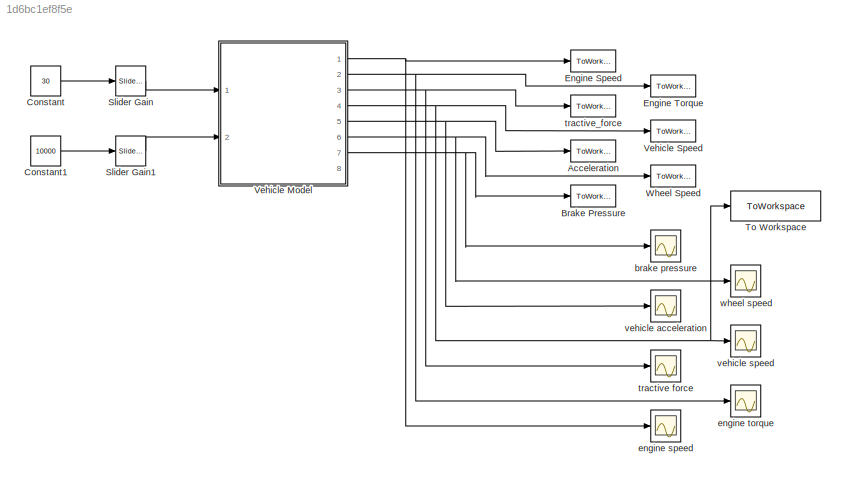
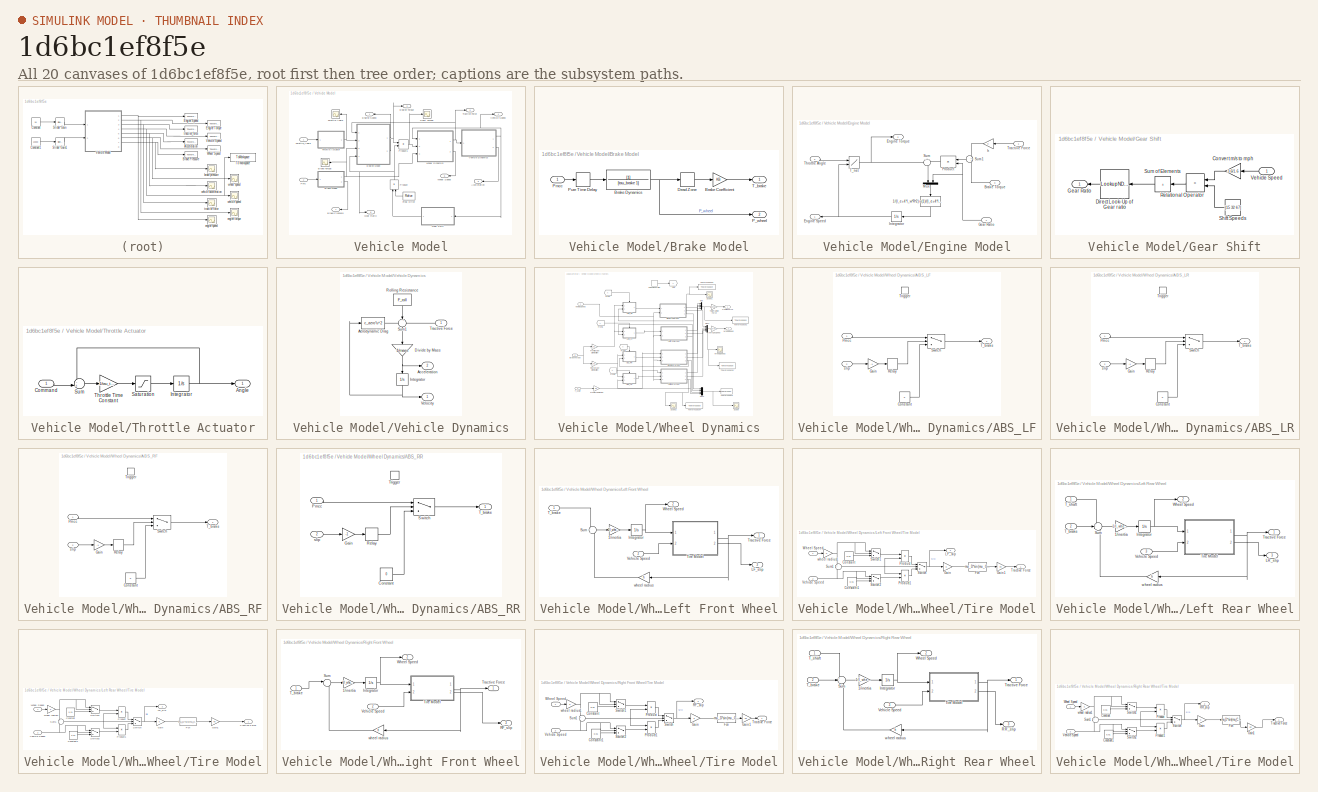
[diagram: thumbnail index - all 20 canvases of the model, root first then tree order]
MODEL slx_1d6bc1ef8f5e
KIND model
CONFIG AbsTol = auto
CONFIG EnableMultiTasking = on
CONFIG FixedStep = auto
CONFIG MaxStep = auto
CONFIG MinStep = auto
CONFIG RelTol = 1e-3
CONFIG SampleTimeConstraint = Unconstrained
CONFIG Solver = ode23s
CONFIG SolverName = ode23s
CONFIG StartTime = 0.0
CONFIG StopTime = 4
BLOCK [ToWorkspace] Acceleration
  MaxDataPoints = inf
  Ports = [1]
  SampleTime = -1
  VariableName = a
BLOCK [ToWorkspace] Brake Pressure
  MaxDataPoints = inf
  Ports = [1]
  SampleTime = -1
  VariableName = Pb
BLOCK [Constant] Constant
  Value = 30
BLOCK [Constant] Constant1
  Value = 10000
BLOCK [ToWorkspace] Engine Speed
  MaxDataPoints = inf
  Ports = [1]
  SampleTime = -1
  VariableName = We
BLOCK [ToWorkspace] Engine Torque
  MaxDataPoints = inf
  Ports = [1]
  SampleTime = -1
  VariableName = Te
BLOCK [Reference] Slider Gain  REF=simulink/Math
Operations/Slider
Gain
  Ports = [1, 1]
  SourceBlock = simulink/Math\nOperations/Slider\nGain
  SourceProductBaseCode = SL
  SourceType = Slider Gain
BLOCK [Reference] Slider Gain1  REF=simulink/Math
Operations/Slider
Gain
  Ports = [1, 1]
  SourceBlock = simulink/Math\nOperations/Slider\nGain
  SourceProductBaseCode = SL
  SourceType = Slider Gain
BLOCK [ToWorkspace] To Workspace
  FixptAsFi = on
  MaxDataPoints = inf
  Ports = [1]
  SampleTime = -1
  VariableName = speed
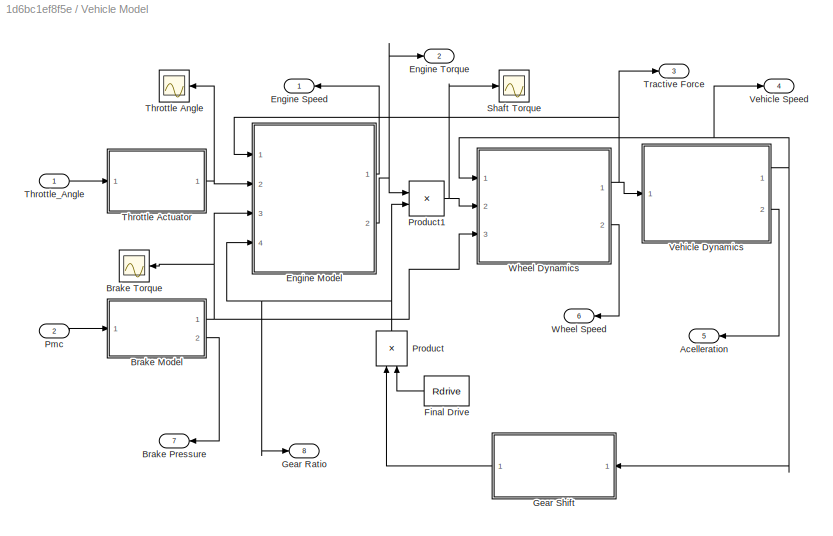
BLOCK [SubSystem] Vehicle Model
  Ports = [2, 8]
  RequestExecContextInheritance = off
BLOCK [Outport] Vehicle Model/Acelleration
  Port = 5
BLOCK [SubSystem] Vehicle Model/Brake Model
  Ports = [1, 2]
  RequestExecContextInheritance = off
BLOCK [Gain] Vehicle Model/Brake Model/Brake Coefficient
  Gain = KB
  OutDataTypeStr = Inherit: Same as input
  ParamDataTypeStr = Inherit: Same as input
  SaturateOnIntegerOverflow = on
BLOCK [TransferFcn] Vehicle Model/Brake Model/Brake Dynamics
  Denominator = [tau_brake 1]
BLOCK [DeadZone] Vehicle Model/Brake Model/Dead Zone
  LowerValue = -P_po
  UpperValue = P_po
BLOCK [Outport] Vehicle Model/Brake Model/P_wheel
  Port = 2
BLOCK [Inport] Vehicle Model/Brake Model/Pmcc
BLOCK [TransportDelay] Vehicle Model/Brake Model/Pure Time Delay
  DelayTime = delay_brake
  Ports = [1, 1]
BLOCK [Outport] Vehicle Model/Brake Model/T_brake
BLOCK [Outport] Vehicle Model/Brake Pressure
  Port = 7
BLOCK [Scope] Vehicle Model/Brake Torque
  Floating = off
  NameLocation = top
  NumInputPorts = 1
  Ports = [1]
  ScopeSpecificationString = C++SS(StrPVP('Location','[4, 496, 328, 735]'),StrPVP('Open','off'),MxPVP('AxesTitles',54,'struct(''axes1'',''%<SignalLabel>'')'),StrPVP('YMin','198.5'),StrPVP('YMax','200.75'),StrPVP('SaveName','ScopeData19'),StrPVP('DataFormat','StructureWithTime'),StrPVP('BlockParamSampleTime','0'),StrPVP('LimitDataPoints','on'),StrPVP('Decimation','1'),StrPVP('BlockParamSampleInput','off'))
BLOCK [SubSystem] Vehicle Model/Engine Model
  Ports = [4, 2]
  RequestExecContextInheritance = off
BLOCK [Fcn] Vehicle Model/Engine Model/1//(I_e+4*I_w*R^2)
  Expr = u(1)/(I_e+4*I_wheel*u(2)^2)
  NameLocation = left
BLOCK [Inport] Vehicle Model/Engine Model/Brake Torque
  Port = 3
BLOCK [Outport] Vehicle Model/Engine Model/Engine Speed
BLOCK [Outport] Vehicle Model/Engine Model/Engine Torque
  Port = 2
BLOCK [Inport] Vehicle Model/Engine Model/Gear Ratio
  Port = 4
BLOCK [Integrator] Vehicle Model/Engine Model/Integrator
  InitialCondition = we_o
  LimitOutput = on
  LowerSaturationLimit = [we_min]
  Ports = [1, 1]
  UpperSaturationLimit = [we_max]
BLOCK [Mux] Vehicle Model/Engine Model/Mux
  DisplayOption = bar
  Inputs = 2
  NameLocation = left
  Ports = [2, 1]
BLOCK [Product] Vehicle Model/Engine Model/Product
  InputSameDT = on
  OutDataTypeStr = Inherit: Same as first input
  Ports = [2, 1]
  RndMeth = Zero
  SaturateOnIntegerOverflow = on
BLOCK [Sum] Vehicle Model/Engine Model/Sum
  InputSameDT = on
  Inputs = +|-
  NameLocation = left
  OutDataTypeStr = Inherit: Same as first input
  Ports = [2, 1]
  SaturateOnIntegerOverflow = on
BLOCK [Sum] Vehicle Model/Engine Model/Sum1
  InputSameDT = on
  NameLocation = top
  OutDataTypeStr = Inherit: Same as first input
  Ports = [2, 1]
  SaturateOnIntegerOverflow = on
BLOCK [Lookup2D] Vehicle Model/Engine Model/T_net
  ColumnIndex = we_table
  RowIndex = alpha_table
  Table = tnet_table
BLOCK [Inport] Vehicle Model/Engine Model/Throttle Angle
  Port = 2
BLOCK [Inport] Vehicle Model/Engine Model/Tractive Force
BLOCK [Gain] Vehicle Model/Engine Model/h
  Gain = h
  Multiplication = Matrix(K*u)
  OutDataTypeStr = Inherit: Same as input
  ParamDataTypeStr = Inherit: Same as input
  SaturateOnIntegerOverflow = on
BLOCK [Outport] Vehicle Model/Engine Speed
BLOCK [Outport] Vehicle Model/Engine Torque
  Port = 2
BLOCK [Constant] Vehicle Model/Final Drive
  Value = Rdrive
BLOCK [Outport] Vehicle Model/Gear Ratio
  Port = 8
BLOCK [SubSystem] Vehicle Model/Gear Shift
  Ports = [1, 1]
  RequestExecContextInheritance = off
BLOCK [Gain] Vehicle Model/Gear Shift/Convert m//s to mph
  Gain = 3.6/1.6
  NameLocation = top
  OutDataTypeStr = Inherit: Same as input
  ParamDataTypeStr = Inherit: Same as input
  SaturateOnIntegerOverflow = on
BLOCK [LookupNDDirect] Vehicle Model/Gear Shift/Direct Look-Up of Gear ratio
  NameLocation = top
  NumberOfTableDimensions = 1
  Ports = [1, 1]
  Table = [0.3423,0.6378,1.0,1.4184]
BLOCK [Outport] Vehicle Model/Gear Shift/Gear Ratio
BLOCK [RelationalOperator] Vehicle Model/Gear Shift/Relational Operator
  NameLocation = top
  Operator = >
  Ports = [2, 1]
BLOCK [Constant] Vehicle Model/Gear Shift/Shift Speeds
  NameLocation = top
  Value = [15 32 67]
BLOCK [Sum] Vehicle Model/Gear Shift/Sum of Elements
  IconShape = rectangular
  Inputs = +
  Ports = [1, 1]
BLOCK [Inport] Vehicle Model/Gear Shift/Vehicle Speed
BLOCK [Inport] Vehicle Model/Pmc
  Port = 2
BLOCK [Product] Vehicle Model/Product
  InputSameDT = on
  Inputs = **
  NameLocation = left
  OutDataTypeStr = Inherit: Same as first input
  Ports = [2, 1]
  RndMeth = Zero
  SaturateOnIntegerOverflow = on
BLOCK [Product] Vehicle Model/Product1
  InputSameDT = on
  Inputs = */
  NameLocation = top
  OutDataTypeStr = Inherit: Same as first input
  Ports = [2, 1]
  RndMeth = Zero
  SaturateOnIntegerOverflow = on
BLOCK [Scope] Vehicle Model/Shaft Torque
  Floating = off
  NameLocation = top
  NumInputPorts = 1
  Ports = [1]
  ScopeSpecificationString = C++SS(StrPVP('Location','[679, 471, 1003, 710]'),StrPVP('Open','off'),StrPVP('ZoomMode','xonly'),MxPVP('AxesTitles',54,'struct(''axes1'',''%<SignalLabel>'')'),StrPVP('YMin','198.5'),StrPVP('YMax','200.75'),StrPVP('DataFormat','StructureWithTime'),StrPVP('BlockParamSampleTime','0'),StrPVP('LimitDataPoints','on'),StrPVP('Decimation','1'),StrPVP('BlockParamSampleInput','off'))
BLOCK [SubSystem] Vehicle Model/Throttle Actuator
  Ports = [1, 1]
  RequestExecContextInheritance = off
BLOCK [Outport] Vehicle Model/Throttle Actuator/Angle
BLOCK [Inport] Vehicle Model/Throttle Actuator/Command
BLOCK [Integrator] Vehicle Model/Throttle Actuator/Integrator
  InitialCondition = throttle_o
  LimitOutput = on
  LowerSaturationLimit = min_throttle
  Ports = [1, 1]
  UpperSaturationLimit = max_throttle
BLOCK [Saturate] Vehicle Model/Throttle Actuator/Saturation
  LowerLimit = -max_throttle_rate
  UpperLimit = max_throttle_rate
BLOCK [Sum] Vehicle Model/Throttle Actuator/Sum
  InputSameDT = on
  Inputs = -+|
  OutDataTypeStr = Inherit: Same as first input
  Ports = [2, 1]
  SaturateOnIntegerOverflow = on
BLOCK [Gain] Vehicle Model/Throttle Actuator/Throttle Time Constant
  Gain = 1/tau_throttle
  OutDataTypeStr = Inherit: Same as input
  ParamDataTypeStr = Inherit: Same as input
  SaturateOnIntegerOverflow = on
BLOCK [Scope] Vehicle Model/Throttle Angle
  Floating = off
  NameLocation = top
  NumInputPorts = 1
  Ports = [1]
  ScopeSpecificationString = C++SS(StrPVP('Location','[23, 496, 347, 735]'),StrPVP('Open','off'),StrPVP('ZoomMode','xonly'),MxPVP('AxesTitles',54,'struct(''axes1'',''%<SignalLabel>'')'),StrPVP('YMin','198.5'),StrPVP('YMax','200.75'),StrPVP('SaveName','ScopeData2'),StrPVP('DataFormat','StructureWithTime'),StrPVP('BlockParamSampleTime','0'),StrPVP('LimitDataPoints','on'),StrPVP('Decimation','1'),StrPVP('BlockParamSampleInput','...<+6ch>
BLOCK [Inport] Vehicle Model/Throttle_Angle
BLOCK [Outport] Vehicle Model/Tractive Force
  Port = 3
BLOCK [SubSystem] Vehicle Model/Vehicle Dynamics
  Ports = [1, 2]
  RequestExecContextInheritance = off
BLOCK [Outport] Vehicle Model/Vehicle Dynamics/Acceleration
  NameLocation = top
  Port = 2
BLOCK [Fcn] Vehicle Model/Vehicle Dynamics/Aerodynamic Drag
  Expr = c_aero*u^2
BLOCK [Gain] Vehicle Model/Vehicle Dynamics/Divide by Mass
  Gain = 1/mass
  Multiplication = Matrix(K*u)
  NameLocation = left
  OutDataTypeStr = Inherit: Same as input
  ParamDataTypeStr = Inherit: Same as input
  SaturateOnIntegerOverflow = on
BLOCK [Integrator] Vehicle Model/Vehicle Dynamics/Integrator
  InitialCondition = x_dot_o
  LimitOutput = on
  LowerSaturationLimit = 0
  NameLocation = left
  Ports = [1, 1]
BLOCK [Constant] Vehicle Model/Vehicle Dynamics/Rolling Resistance
  NameLocation = left
  Value = F_roll
BLOCK [Sum] Vehicle Model/Vehicle Dynamics/Sum1
  InputSameDT = on
  Inputs = --+
  NameLocation = left
  OutDataTypeStr = Inherit: Same as first input
  Ports = [3, 1]
  SaturateOnIntegerOverflow = on
BLOCK [Inport] Vehicle Model/Vehicle Dynamics/Tractive Force
BLOCK [Outport] Vehicle Model/Vehicle Dynamics/Velocity
  NameLocation = top
BLOCK [Outport] Vehicle Model/Vehicle Speed
  Port = 4
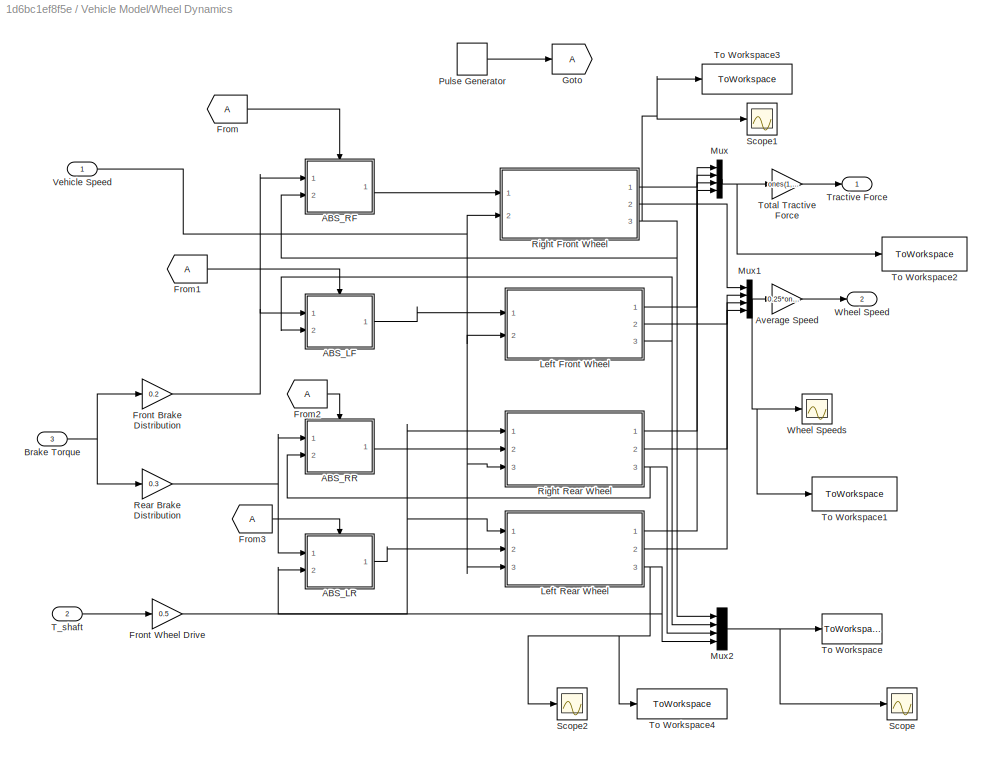
BLOCK [SubSystem] Vehicle Model/Wheel Dynamics
  Ports = [3, 2]
  RequestExecContextInheritance = off
BLOCK [SubSystem] Vehicle Model/Wheel Dynamics/ABS_LF
  Ports = [2, 1, 0, 1]
  RequestExecContextInheritance = off
  TreatAsAtomicUnit = on
BLOCK [Constant] Vehicle Model/Wheel Dynamics/ABS_LF/Constant
  Value = 0
BLOCK [Gain] Vehicle Model/Wheel Dynamics/ABS_LF/Gain
  Gain = -1
BLOCK [Inport] Vehicle Model/Wheel Dynamics/ABS_LF/Pmcc
BLOCK [Relay] Vehicle Model/Wheel Dynamics/ABS_LF/Relay
  OffOutputValue = 1
  OffSwitchValue = 0.1
  OnOutputValue = 0
  OnSwitchValue = 0.2
BLOCK [Switch] Vehicle Model/Wheel Dynamics/ABS_LF/Switch
  Criteria = u2 > Threshold
  InputSameDT = off
  SaturateOnIntegerOverflow = off
BLOCK [Outport] Vehicle Model/Wheel Dynamics/ABS_LF/T_brake
BLOCK [TriggerPort] Vehicle Model/Wheel Dynamics/ABS_LF/Trigger
  Ports = []
  StatesWhenEnabling = held
  VariantControl = Variant
BLOCK [Inport] Vehicle Model/Wheel Dynamics/ABS_LF/slip
  Port = 2
BLOCK [SubSystem] Vehicle Model/Wheel Dynamics/ABS_LR
  Ports = [2, 1, 0, 1]
  RequestExecContextInheritance = off
  TreatAsAtomicUnit = on
BLOCK [Constant] Vehicle Model/Wheel Dynamics/ABS_LR/Constant
  Value = 0
BLOCK [Gain] Vehicle Model/Wheel Dynamics/ABS_LR/Gain
  Gain = -1
BLOCK [Inport] Vehicle Model/Wheel Dynamics/ABS_LR/Pmcc
BLOCK [Relay] Vehicle Model/Wheel Dynamics/ABS_LR/Relay
  OffOutputValue = 1
  OffSwitchValue = 0.1
  OnOutputValue = 0
  OnSwitchValue = 0.2
BLOCK [Switch] Vehicle Model/Wheel Dynamics/ABS_LR/Switch
  Criteria = u2 > Threshold
  InputSameDT = off
  SaturateOnIntegerOverflow = off
BLOCK [Outport] Vehicle Model/Wheel Dynamics/ABS_LR/T_brake
BLOCK [TriggerPort] Vehicle Model/Wheel Dynamics/ABS_LR/Trigger
  Ports = []
  StatesWhenEnabling = held
  VariantControl = Variant
BLOCK [Inport] Vehicle Model/Wheel Dynamics/ABS_LR/slip
  Port = 2
BLOCK [SubSystem] Vehicle Model/Wheel Dynamics/ABS_RF
  Ports = [2, 1, 0, 1]
  RequestExecContextInheritance = off
  TreatAsAtomicUnit = on
BLOCK [Constant] Vehicle Model/Wheel Dynamics/ABS_RF/Constant
  Value = 0
BLOCK [Gain] Vehicle Model/Wheel Dynamics/ABS_RF/Gain
  Gain = -1
BLOCK [Inport] Vehicle Model/Wheel Dynamics/ABS_RF/Pmcc
BLOCK [Relay] Vehicle Model/Wheel Dynamics/ABS_RF/Relay
  OffOutputValue = 1
  OffSwitchValue = 0.1
  OnOutputValue = 0
  OnSwitchValue = 0.2
BLOCK [Switch] Vehicle Model/Wheel Dynamics/ABS_RF/Switch
  Criteria = u2 > Threshold
  InputSameDT = off
  SaturateOnIntegerOverflow = off
BLOCK [Outport] Vehicle Model/Wheel Dynamics/ABS_RF/T_brake
BLOCK [TriggerPort] Vehicle Model/Wheel Dynamics/ABS_RF/Trigger
  Ports = []
  StatesWhenEnabling = held
  VariantControl = Variant
BLOCK [Inport] Vehicle Model/Wheel Dynamics/ABS_RF/slip
  Port = 2
BLOCK [SubSystem] Vehicle Model/Wheel Dynamics/ABS_RR
  Ports = [2, 1, 0, 1]
  RequestExecContextInheritance = off
  TreatAsAtomicUnit = on
BLOCK [Constant] Vehicle Model/Wheel Dynamics/ABS_RR/Constant
  Value = 0
BLOCK [Gain] Vehicle Model/Wheel Dynamics/ABS_RR/Gain
  Gain = -1
BLOCK [Inport] Vehicle Model/Wheel Dynamics/ABS_RR/Pmcc
BLOCK [Relay] Vehicle Model/Wheel Dynamics/ABS_RR/Relay
  OffOutputValue = 1
  OffSwitchValue = 0.1
  OnOutputValue = 0
  OnSwitchValue = 0.2
BLOCK [Switch] Vehicle Model/Wheel Dynamics/ABS_RR/Switch
  Criteria = u2 > Threshold
  InputSameDT = off
  SaturateOnIntegerOverflow = off
BLOCK [Outport] Vehicle Model/Wheel Dynamics/ABS_RR/T_brake
BLOCK [TriggerPort] Vehicle Model/Wheel Dynamics/ABS_RR/Trigger
  Ports = []
  StatesWhenEnabling = held
  VariantControl = Variant
BLOCK [Inport] Vehicle Model/Wheel Dynamics/ABS_RR/slip
  Port = 2
BLOCK [Gain] Vehicle Model/Wheel Dynamics/Average Speed
  Gain = 0.25*ones(1,4)
  Multiplication = Matrix(K*u)
  OutDataTypeStr = Inherit: Same as input
  ParamDataTypeStr = Inherit: Same as input
  SaturateOnIntegerOverflow = on
BLOCK [Inport] Vehicle Model/Wheel Dynamics/Brake Torque
  Port = 3
BLOCK [From] Vehicle Model/Wheel Dynamics/From
BLOCK [From] Vehicle Model/Wheel Dynamics/From1
BLOCK [From] Vehicle Model/Wheel Dynamics/From2
BLOCK [From] Vehicle Model/Wheel Dynamics/From3
BLOCK [Gain] Vehicle Model/Wheel Dynamics/Front Brake Distribution
  Gain = 0.2
  OutDataTypeStr = Inherit: Same as input
  ParamDataTypeStr = Inherit: Same as input
  SaturateOnIntegerOverflow = on
BLOCK [Gain] Vehicle Model/Wheel Dynamics/Front Wheel Drive
  Gain = 0.5
  OutDataTypeStr = Inherit: Same as input
  ParamDataTypeStr = Inherit: Same as input
  SaturateOnIntegerOverflow = on
BLOCK [Goto] Vehicle Model/Wheel Dynamics/Goto
BLOCK [SubSystem] Vehicle Model/Wheel Dynamics/Left Front Wheel
  Ports = [2, 3]
  RequestExecContextInheritance = off
BLOCK [Gain] Vehicle Model/Wheel Dynamics/Left Front Wheel/1//inertia
  Gain = 1/I_wheel
  OutDataTypeStr = Inherit: Same as input
  ParamDataTypeStr = Inherit: Same as input
  SaturateOnIntegerOverflow = on
BLOCK [Integrator] Vehicle Model/Wheel Dynamics/Left Front Wheel/Integrator
  InitialCondition = w_wheel_o
  Ports = [1, 1]
BLOCK [Outport] Vehicle Model/Wheel Dynamics/Left Front Wheel/LF_slip
  Port = 3
BLOCK [Sum] Vehicle Model/Wheel Dynamics/Left Front Wheel/Sum
  InputSameDT = on
  Inputs = -|-
  OutDataTypeStr = Inherit: Same as first input
  Ports = [2, 1]
  SaturateOnIntegerOverflow = on
BLOCK [Inport] Vehicle Model/Wheel Dynamics/Left Front Wheel/T_brake
BLOCK [SubSystem] Vehicle Model/Wheel Dynamics/Left Front Wheel/Tire Model
  Ports = [2, 2]
  RequestExecContextInheritance = off
BLOCK [Constant] Vehicle Model/Wheel Dynamics/Left Front Wheel/Tire Model/Constant
  Value = 0.01
BLOCK [Constant] Vehicle Model/Wheel Dynamics/Left Front Wheel/Tire Model/Constant1
  Value = 0.01
BLOCK [Fcn] Vehicle Model/Wheel Dynamics/Left Front Wheel/Tire Model/Fcn
  Expr = mu_D*sin(mu_C*atan(mu_B*u-mu_E*(mu_B*u-atan(mu_B*u))))
BLOCK [Gain] Vehicle Model/Wheel Dynamics/Left Front Wheel/Tire Model/Gain
  OutDataTypeStr = Inherit: Same as input
  ParamDataTypeStr = Inherit: Same as input
  SaturateOnIntegerOverflow = on
BLOCK [Gain] Vehicle Model/Wheel Dynamics/Left Front Wheel/Tire Model/Gain1
  Gain = Fz
BLOCK [Outport] Vehicle Model/Wheel Dynamics/Left Front Wheel/Tire Model/LF_slip
  Port = 2
BLOCK [Product] Vehicle Model/Wheel Dynamics/Left Front Wheel/Tire Model/Product
  InputSameDT = on
  Inputs = /*
  OutDataTypeStr = Inherit: Same as first input
  Ports = [2, 1]
  RndMeth = Zero
  SaturateOnIntegerOverflow = on
BLOCK [Product] Vehicle Model/Wheel Dynamics/Left Front Wheel/Tire Model/Product1
  InputSameDT = on
  Inputs = */
  OutDataTypeStr = Inherit: Same as first input
  Ports = [2, 1]
  RndMeth = Zero
  SaturateOnIntegerOverflow = on
BLOCK [Sum] Vehicle Model/Wheel Dynamics/Left Front Wheel/Tire Model/Sum1
  InputSameDT = on
  Inputs = +-
  NameLocation = top
  OutDataTypeStr = Inherit: Same as first input
  Ports = [2, 1]
  SaturateOnIntegerOverflow = on
BLOCK [Switch] Vehicle Model/Wheel Dynamics/Left Front Wheel/Tire Model/Switch
BLOCK [Switch] Vehicle Model/Wheel Dynamics/Left Front Wheel/Tire Model/Switch1
  Threshold = 0.01
BLOCK [Switch] Vehicle Model/Wheel Dynamics/Left Front Wheel/Tire Model/Switch2
  Threshold = 0.01
BLOCK [Outport] Vehicle Model/Wheel Dynamics/Left Front Wheel/Tire Model/Tractive Force
BLOCK [Inport] Vehicle Model/Wheel Dynamics/Left Front Wheel/Tire Model/Vehicle Speed
  Port = 2
BLOCK [Inport] Vehicle Model/Wheel Dynamics/Left Front Wheel/Tire Model/Wheel Speed
BLOCK [Gain] Vehicle Model/Wheel Dynamics/Left Front Wheel/Tire Model/wheel radius1
  Gain = h
  OutDataTypeStr = Inherit: Same as input
  ParamDataTypeStr = Inherit: Same as input
  SaturateOnIntegerOverflow = on
BLOCK [Outport] Vehicle Model/Wheel Dynamics/Left Front Wheel/Tractive Force
BLOCK [Inport] Vehicle Model/Wheel Dynamics/Left Front Wheel/Vehicle Speed
  Port = 2
BLOCK [Outport] Vehicle Model/Wheel Dynamics/Left Front Wheel/Wheel Speed
  Port = 2
BLOCK [Gain] Vehicle Model/Wheel Dynamics/Left Front Wheel/wheel radius
  Gain = h
  NameLocation = top
  OutDataTypeStr = Inherit: Same as input
  ParamDataTypeStr = Inherit: Same as input
  SaturateOnIntegerOverflow = on
BLOCK [SubSystem] Vehicle Model/Wheel Dynamics/Left Rear Wheel
  Ports = [3, 3]
  RequestExecContextInheritance = off
BLOCK [Gain] Vehicle Model/Wheel Dynamics/Left Rear Wheel/1//inertia
  Gain = 1/I_wheel
  OutDataTypeStr = Inherit: Same as input
  ParamDataTypeStr = Inherit: Same as input
  SaturateOnIntegerOverflow = on
BLOCK [Integrator] Vehicle Model/Wheel Dynamics/Left Rear Wheel/Integrator
  InitialCondition = w_wheel_o
  Ports = [1, 1]
BLOCK [Outport] Vehicle Model/Wheel Dynamics/Left Rear Wheel/LR_slip
  Port = 3
BLOCK [Sum] Vehicle Model/Wheel Dynamics/Left Rear Wheel/Sum
  InputSameDT = on
  Inputs = +--
  OutDataTypeStr = Inherit: Same as first input
  Ports = [3, 1]
  SaturateOnIntegerOverflow = on
BLOCK [Inport] Vehicle Model/Wheel Dynamics/Left Rear Wheel/T_brake
  Port = 2
BLOCK [Inport] Vehicle Model/Wheel Dynamics/Left Rear Wheel/T_shaft
BLOCK [SubSystem] Vehicle Model/Wheel Dynamics/Left Rear Wheel/Tire Model
  Ports = [2, 2]
  RequestExecContextInheritance = off
BLOCK [Constant] Vehicle Model/Wheel Dynamics/Left Rear Wheel/Tire Model/Constant
  Value = 0.01
BLOCK [Constant] Vehicle Model/Wheel Dynamics/Left Rear Wheel/Tire Model/Constant1
  Value = 0.01
BLOCK [Fcn] Vehicle Model/Wheel Dynamics/Left Rear Wheel/Tire Model/Fcn
  Expr = mu_D*sin(mu_C*atan(mu_B*u-mu_E*(mu_B*u-atan(mu_B*u))))
BLOCK [Gain] Vehicle Model/Wheel Dynamics/Left Rear Wheel/Tire Model/Gain
  OutDataTypeStr = Inherit: Same as input
  ParamDataTypeStr = Inherit: Same as input
  SaturateOnIntegerOverflow = on
BLOCK [Gain] Vehicle Model/Wheel Dynamics/Left Rear Wheel/Tire Model/Gain1
  Gain = Fz
BLOCK [Outport] Vehicle Model/Wheel Dynamics/Left Rear Wheel/Tire Model/LR_slip
  Port = 2
BLOCK [Product] Vehicle Model/Wheel Dynamics/Left Rear Wheel/Tire Model/Product
  InputSameDT = on
  Inputs = /*
  OutDataTypeStr = Inherit: Same as first input
  Ports = [2, 1]
  RndMeth = Zero
  SaturateOnIntegerOverflow = on
BLOCK [Product] Vehicle Model/Wheel Dynamics/Left Rear Wheel/Tire Model/Product1
  InputSameDT = on
  Inputs = */
  OutDataTypeStr = Inherit: Same as first input
  Ports = [2, 1]
  RndMeth = Zero
  SaturateOnIntegerOverflow = on
BLOCK [Sum] Vehicle Model/Wheel Dynamics/Left Rear Wheel/Tire Model/Sum1
  InputSameDT = on
  Inputs = +-
  NameLocation = top
  OutDataTypeStr = Inherit: Same as first input
  Ports = [2, 1]
  SaturateOnIntegerOverflow = on
BLOCK [Switch] Vehicle Model/Wheel Dynamics/Left Rear Wheel/Tire Model/Switch
BLOCK [Switch] Vehicle Model/Wheel Dynamics/Left Rear Wheel/Tire Model/Switch1
  Threshold = 0.01
BLOCK [Switch] Vehicle Model/Wheel Dynamics/Left Rear Wheel/Tire Model/Switch2
  Threshold = 0.01
BLOCK [Outport] Vehicle Model/Wheel Dynamics/Left Rear Wheel/Tire Model/Tractive Force
BLOCK [Inport] Vehicle Model/Wheel Dynamics/Left Rear Wheel/Tire Model/Vehicle Speed
  Port = 2
BLOCK [Inport] Vehicle Model/Wheel Dynamics/Left Rear Wheel/Tire Model/Wheel Speed
BLOCK [Gain] Vehicle Model/Wheel Dynamics/Left Rear Wheel/Tire Model/wheel radius1
  Gain = h
  OutDataTypeStr = Inherit: Same as input
  ParamDataTypeStr = Inherit: Same as input
  SaturateOnIntegerOverflow = on
BLOCK [Outport] Vehicle Model/Wheel Dynamics/Left Rear Wheel/Tractive Force
BLOCK [Inport] Vehicle Model/Wheel Dynamics/Left Rear Wheel/Vehicle Speed
  Port = 3
BLOCK [Outport] Vehicle Model/Wheel Dynamics/Left Rear Wheel/Wheel Speed
  Port = 2
BLOCK [Gain] Vehicle Model/Wheel Dynamics/Left Rear Wheel/wheel radius
  Gain = h
  NameLocation = top
  OutDataTypeStr = Inherit: Same as input
  ParamDataTypeStr = Inherit: Same as input
  SaturateOnIntegerOverflow = on
BLOCK [Mux] Vehicle Model/Wheel Dynamics/Mux
  DisplayOption = bar
  Ports = [4, 1]
BLOCK [Mux] Vehicle Model/Wheel Dynamics/Mux1
  DisplayOption = bar
  Ports = [4, 1]
BLOCK [Mux] Vehicle Model/Wheel Dynamics/Mux2
  DisplayOption = bar
  NameLocation = top
  Ports = [4, 1]
BLOCK [DiscretePulseGenerator] Vehicle Model/Wheel Dynamics/Pulse Generator
  Period = 0.01
  Ports = [0, 1]
  PulseType = Time based
  PulseWidth = 50
BLOCK [Gain] Vehicle Model/Wheel Dynamics/Rear Brake Distribution
  Gain = 0.3
  OutDataTypeStr = Inherit: Same as input
  ParamDataTypeStr = Inherit: Same as input
  SaturateOnIntegerOverflow = on
BLOCK [SubSystem] Vehicle Model/Wheel Dynamics/Right Front Wheel
  Ports = [2, 3]
  RequestExecContextInheritance = off
BLOCK [Gain] Vehicle Model/Wheel Dynamics/Right Front Wheel/1//inertia
  Gain = 1/I_wheel
  OutDataTypeStr = Inherit: Same as input
  ParamDataTypeStr = Inherit: Same as input
  SaturateOnIntegerOverflow = on
BLOCK [Integrator] Vehicle Model/Wheel Dynamics/Right Front Wheel/Integrator
  InitialCondition = w_wheel_o
  Ports = [1, 1]
BLOCK [Outport] Vehicle Model/Wheel Dynamics/Right Front Wheel/RF_slip
  Port = 3
BLOCK [Sum] Vehicle Model/Wheel Dynamics/Right Front Wheel/Sum
  InputSameDT = on
  Inputs = |--
  OutDataTypeStr = Inherit: Same as first input
  Ports = [2, 1]
  SaturateOnIntegerOverflow = on
BLOCK [Inport] Vehicle Model/Wheel Dynamics/Right Front Wheel/T_brake
BLOCK [SubSystem] Vehicle Model/Wheel Dynamics/Right Front Wheel/Tire Model
  Ports = [2, 2]
  RequestExecContextInheritance = off
BLOCK [Constant] Vehicle Model/Wheel Dynamics/Right Front Wheel/Tire Model/Constant
  Value = 0.01
BLOCK [Constant] Vehicle Model/Wheel Dynamics/Right Front Wheel/Tire Model/Constant1
  Value = 0.01
BLOCK [Fcn] Vehicle Model/Wheel Dynamics/Right Front Wheel/Tire Model/Fcn
  Expr = mu_D*sin(mu_C*atan(mu_B*u-mu_E*(mu_B*u-atan(mu_B*u))))
BLOCK [Gain] Vehicle Model/Wheel Dynamics/Right Front Wheel/Tire Model/Gain
  OutDataTypeStr = Inherit: Same as input
  ParamDataTypeStr = Inherit: Same as input
  SaturateOnIntegerOverflow = on
BLOCK [Gain] Vehicle Model/Wheel Dynamics/Right Front Wheel/Tire Model/Gain1
  Gain = Fz
BLOCK [Product] Vehicle Model/Wheel Dynamics/Right Front Wheel/Tire Model/Product
  InputSameDT = on
  Inputs = /*
  OutDataTypeStr = Inherit: Same as first input
  Ports = [2, 1]
  RndMeth = Zero
  SaturateOnIntegerOverflow = on
BLOCK [Product] Vehicle Model/Wheel Dynamics/Right Front Wheel/Tire Model/Product1
  InputSameDT = on
  Inputs = */
  OutDataTypeStr = Inherit: Same as first input
  Ports = [2, 1]
  RndMeth = Zero
  SaturateOnIntegerOverflow = on
BLOCK [Outport] Vehicle Model/Wheel Dynamics/Right Front Wheel/Tire Model/RF_slip
  Port = 2
BLOCK [Sum] Vehicle Model/Wheel Dynamics/Right Front Wheel/Tire Model/Sum1
  InputSameDT = on
  Inputs = +-
  NameLocation = top
  OutDataTypeStr = Inherit: Same as first input
  Ports = [2, 1]
  SaturateOnIntegerOverflow = on
BLOCK [Switch] Vehicle Model/Wheel Dynamics/Right Front Wheel/Tire Model/Switch
BLOCK [Switch] Vehicle Model/Wheel Dynamics/Right Front Wheel/Tire Model/Switch1
  Threshold = 0.01
BLOCK [Switch] Vehicle Model/Wheel Dynamics/Right Front Wheel/Tire Model/Switch2
  Threshold = 0.01
BLOCK [Outport] Vehicle Model/Wheel Dynamics/Right Front Wheel/Tire Model/Tractive Force
BLOCK [Inport] Vehicle Model/Wheel Dynamics/Right Front Wheel/Tire Model/Vehicle Speed
  Port = 2
BLOCK [Inport] Vehicle Model/Wheel Dynamics/Right Front Wheel/Tire Model/Wheel Speed
BLOCK [Gain] Vehicle Model/Wheel Dynamics/Right Front Wheel/Tire Model/wheel radius1
  Gain = h
  OutDataTypeStr = Inherit: Same as input
  ParamDataTypeStr = Inherit: Same as input
  SaturateOnIntegerOverflow = on
BLOCK [Outport] Vehicle Model/Wheel Dynamics/Right Front Wheel/Tractive Force
BLOCK [Inport] Vehicle Model/Wheel Dynamics/Right Front Wheel/Vehicle Speed
  Port = 2
BLOCK [Outport] Vehicle Model/Wheel Dynamics/Right Front Wheel/Wheel Speed
  Port = 2
BLOCK [Gain] Vehicle Model/Wheel Dynamics/Right Front Wheel/wheel radius
  Gain = h
  NameLocation = top
  OutDataTypeStr = Inherit: Same as input
  ParamDataTypeStr = Inherit: Same as input
  SaturateOnIntegerOverflow = on
BLOCK [SubSystem] Vehicle Model/Wheel Dynamics/Right Rear Wheel
  Ports = [3, 3]
  RequestExecContextInheritance = off
BLOCK [Gain] Vehicle Model/Wheel Dynamics/Right Rear Wheel/1//inertia
  Gain = 1/I_wheel
  OutDataTypeStr = Inherit: Same as input
  ParamDataTypeStr = Inherit: Same as input
  SaturateOnIntegerOverflow = on
BLOCK [Integrator] Vehicle Model/Wheel Dynamics/Right Rear Wheel/Integrator
  InitialCondition = w_wheel_o
  Ports = [1, 1]
BLOCK [Outport] Vehicle Model/Wheel Dynamics/Right Rear Wheel/RR_slip
  Port = 3
BLOCK [Sum] Vehicle Model/Wheel Dynamics/Right Rear Wheel/Sum
  InputSameDT = on
  Inputs = +--
  OutDataTypeStr = Inherit: Same as first input
  Ports = [3, 1]
  SaturateOnIntegerOverflow = on
BLOCK [Inport] Vehicle Model/Wheel Dynamics/Right Rear Wheel/T_brake
  Port = 2
BLOCK [Inport] Vehicle Model/Wheel Dynamics/Right Rear Wheel/T_shaft
BLOCK [SubSystem] Vehicle Model/Wheel Dynamics/Right Rear Wheel/Tire Model
  Ports = [2, 2]
  RequestExecContextInheritance = off
BLOCK [Constant] Vehicle Model/Wheel Dynamics/Right Rear Wheel/Tire Model/Constant
  Value = 0.01
BLOCK [Constant] Vehicle Model/Wheel Dynamics/Right Rear Wheel/Tire Model/Constant1
  Value = 0.01
BLOCK [Fcn] Vehicle Model/Wheel Dynamics/Right Rear Wheel/Tire Model/Fcn
  Expr = mu_D*sin(mu_C*atan(mu_B*u-mu_E*(mu_B*u-atan(mu_B*u))))
BLOCK [Gain] Vehicle Model/Wheel Dynamics/Right Rear Wheel/Tire Model/Gain
  OutDataTypeStr = Inherit: Same as input
  ParamDataTypeStr = Inherit: Same as input
  SaturateOnIntegerOverflow = on
BLOCK [Gain] Vehicle Model/Wheel Dynamics/Right Rear Wheel/Tire Model/Gain1
  Gain = Fz
BLOCK [Product] Vehicle Model/Wheel Dynamics/Right Rear Wheel/Tire Model/Product
  InputSameDT = on
  Inputs = /*
  OutDataTypeStr = Inherit: Same as first input
  Ports = [2, 1]
  RndMeth = Zero
  SaturateOnIntegerOverflow = on
BLOCK [Product] Vehicle Model/Wheel Dynamics/Right Rear Wheel/Tire Model/Product1
  InputSameDT = on
  Inputs = */
  OutDataTypeStr = Inherit: Same as first input
  Ports = [2, 1]
  RndMeth = Zero
  SaturateOnIntegerOverflow = on
BLOCK [Outport] Vehicle Model/Wheel Dynamics/Right Rear Wheel/Tire Model/RR_slip
  Port = 2
BLOCK [Sum] Vehicle Model/Wheel Dynamics/Right Rear Wheel/Tire Model/Sum1
  InputSameDT = on
  Inputs = +-
  NameLocation = top
  OutDataTypeStr = Inherit: Same as first input
  Ports = [2, 1]
  SaturateOnIntegerOverflow = on
BLOCK [Switch] Vehicle Model/Wheel Dynamics/Right Rear Wheel/Tire Model/Switch
BLOCK [Switch] Vehicle Model/Wheel Dynamics/Right Rear Wheel/Tire Model/Switch1
  Threshold = 0.01
BLOCK [Switch] Vehicle Model/Wheel Dynamics/Right Rear Wheel/Tire Model/Switch2
  Threshold = 0.01
BLOCK [Outport] Vehicle Model/Wheel Dynamics/Right Rear Wheel/Tire Model/Tractive Force
BLOCK [Inport] Vehicle Model/Wheel Dynamics/Right Rear Wheel/Tire Model/Vehicle Speed
  Port = 2
BLOCK [Inport] Vehicle Model/Wheel Dynamics/Right Rear Wheel/Tire Model/Wheel Speed
BLOCK [Gain] Vehicle Model/Wheel Dynamics/Right Rear Wheel/Tire Model/wheel radius1
  Gain = h
  OutDataTypeStr = Inherit: Same as input
  ParamDataTypeStr = Inherit: Same as input
  SaturateOnIntegerOverflow = on
BLOCK [Outport] Vehicle Model/Wheel Dynamics/Right Rear Wheel/Tractive Force
BLOCK [Inport] Vehicle Model/Wheel Dynamics/Right Rear Wheel/Vehicle Speed
  Port = 3
BLOCK [Outport] Vehicle Model/Wheel Dynamics/Right Rear Wheel/Wheel Speed
  Port = 2
BLOCK [Gain] Vehicle Model/Wheel Dynamics/Right Rear Wheel/wheel radius
  Gain = h
  NameLocation = top
  OutDataTypeStr = Inherit: Same as input
  ParamDataTypeStr = Inherit: Same as input
  SaturateOnIntegerOverflow = on
BLOCK [Scope] Vehicle Model/Wheel Dynamics/Scope
  Floating = off
  NumInputPorts = 1
  Ports = [1]
  ScopeSpecificationString = Simulink.scopes.TimeScopeBlockCfg('CurrentConfiguration', extmgr.ConfigurationSet(extmgr.Configuration('Core','General UI',true),extmgr.Configuration('Core','Source UI',true),extmgr.Configuration('Sources','WiredSimulink',true,'DataLoggingVariableName','ScopeData1'),extmgr.Configuration('Visuals','Time Domain',true,'SerializedDisplays',{struct('MinYLimReal','-401.32062','MaxYLimReal','44.60177','Y...<+1497ch>
BLOCK [Scope] Vehicle Model/Wheel Dynamics/Scope1
  Floating = off
  NumInputPorts = 1
  Ports = [1]
  ScopeSpecificationString = Simulink.scopes.TimeScopeBlockCfg('CurrentConfiguration', extmgr.ConfigurationSet(extmgr.Configuration('Core','General UI',true),extmgr.Configuration('Core','Source UI',true),extmgr.Configuration('Sources','WiredSimulink',true,'DataLoggingVariableName','ScopeData2'),extmgr.Configuration('Visuals','Time Domain',true,'SerializedDisplays',{struct('MinYLimReal','-0.33808','MaxYLimReal','0.0382','YLabe...<+1410ch>
BLOCK [Scope] Vehicle Model/Wheel Dynamics/Scope2
  Floating = off
  NumInputPorts = 1
  Ports = [1]
  ScopeSpecificationString = Simulink.scopes.TimeScopeBlockCfg('CurrentConfiguration', extmgr.ConfigurationSet(extmgr.Configuration('Core','General UI',true),extmgr.Configuration('Core','Source UI',true),extmgr.Configuration('Sources','WiredSimulink',true,'DataLoggingVariableName','ScopeData3'),extmgr.Configuration('Visuals','Time Domain',true,'SerializedDisplays',{struct('MinYLimReal','-0.41137','MaxYLimReal','0.04571','YLab...<+1411ch>
BLOCK [Inport] Vehicle Model/Wheel Dynamics/T_shaft
  Port = 2
BLOCK [ToWorkspace] Vehicle Model/Wheel Dynamics/To Workspace
  MaxDataPoints = inf
  Ports = [1]
  SampleTime = -1
  VariableName = slip
BLOCK [ToWorkspace] Vehicle Model/Wheel Dynamics/To Workspace1
  MaxDataPoints = inf
  Ports = [1]
  SampleTime = -1
  VariableName = wheel_speed
BLOCK [ToWorkspace] Vehicle Model/Wheel Dynamics/To Workspace2
  MaxDataPoints = inf
  Ports = [1]
  SampleTime = -1
  VariableName = Tractive_Force
BLOCK [ToWorkspace] Vehicle Model/Wheel Dynamics/To Workspace3
  FixptAsFi = on
  MaxDataPoints = inf
  Ports = [1]
  SampleTime = -1
  VariableName = front
BLOCK [ToWorkspace] Vehicle Model/Wheel Dynamics/To Workspace4
  FixptAsFi = on
  MaxDataPoints = inf
  Ports = [1]
  SampleTime = -1
  SaveFormat = Structure With Time
  VariableName = rear
BLOCK [Gain] Vehicle Model/Wheel Dynamics/Total Tractive Force
  Gain = ones(1,4)
  Multiplication = Matrix(K*u)
  OutDataTypeStr = Inherit: Same as input
  ParamDataTypeStr = Inherit: Same as input
  SaturateOnIntegerOverflow = on
BLOCK [Outport] Vehicle Model/Wheel Dynamics/Tractive Force
BLOCK [Inport] Vehicle Model/Wheel Dynamics/Vehicle Speed
BLOCK [Outport] Vehicle Model/Wheel Dynamics/Wheel Speed
  Port = 2
BLOCK [Scope] Vehicle Model/Wheel Dynamics/Wheel Speeds
  Floating = off
  NameLocation = top
  NumInputPorts = 1
  Ports = [1]
  ScopeSpecificationString = C++SS(StrPVP('Location','[699, 533, 1023, 772]'),StrPVP('Open','off'),MxPVP('AxesTitles',54,'struct(''axes1'',''%<SignalLabel>'')'),StrPVP('YMax','30'),StrPVP('SaveName','ScopeData4'),StrPVP('DataFormat','StructureWithTime'),StrPVP('BlockParamSampleTime','0'),StrPVP('LimitDataPoints','on'),StrPVP('Decimation','1'),StrPVP('BlockParamSampleInput','off'))
BLOCK [Outport] Vehicle Model/Wheel Speed
  Port = 6
BLOCK [ToWorkspace] Vehicle Speed
  MaxDataPoints = inf
  Ports = [1]
  SampleTime = -1
  VariableName = v
BLOCK [ToWorkspace] Wheel Speed
  MaxDataPoints = inf
  Ports = [1]
  SampleTime = -1
  VariableName = w
BLOCK [Scope] brake pressure
  Floating = off
  NumInputPorts = 1
  Ports = [1]
  ScopeSpecificationString = C++SS(StrPVP('Location','[356, 496, 680, 735]'),StrPVP('Open','off'),MxPVP('AxesTitles',54,'struct(''axes1'',''%<SignalLabel>'')'),StrPVP('SaveName','ScopeData1'),StrPVP('DataFormat','StructureWithTime'),StrPVP('BlockParamSampleTime','0'),StrPVP('LimitDataPoints','on'),StrPVP('Decimation','1'),StrPVP('BlockParamSampleInput','off'))
BLOCK [Scope] engine speed
  Floating = off
  NumInputPorts = 1
  Ports = [1]
  ScopeSpecificationString = C++SS(StrPVP('Location','[521, 538, 845, 777]'),StrPVP('Open','off'),MxPVP('AxesTitles',54,'struct(''axes1'',''%<SignalLabel>'')'),StrPVP('SaveName','ScopeData5'),StrPVP('DataFormat','StructureWithTime'),StrPVP('BlockParamSampleTime','0'),StrPVP('LimitDataPoints','on'),StrPVP('Decimation','1'),StrPVP('BlockParamSampleInput','off'))
BLOCK [Scope] engine torque
  Floating = off
  NumInputPorts = 1
  Ports = [1]
  ScopeSpecificationString = C++SS(StrPVP('Location','[343, 495, 667, 734]'),StrPVP('Open','off'),MxPVP('AxesTitles',54,'struct(''axes1'',''%<SignalLabel>'')'),StrPVP('SaveName','ScopeData6'),StrPVP('DataFormat','StructureWithTime'),StrPVP('BlockParamSampleTime','0'),StrPVP('LimitDataPoints','on'),StrPVP('Decimation','1'),StrPVP('BlockParamSampleInput','off'))
BLOCK [Scope] tractive force
  Floating = off
  NumInputPorts = 1
  Ports = [1]
  ScopeSpecificationString = C++SS(StrPVP('Location','[75, 474, 399, 713]'),StrPVP('Open','off'),MxPVP('AxesTitles',54,'struct(''axes1'',''%<SignalLabel>'')'),StrPVP('SaveName','ScopeData9'),StrPVP('DataFormat','StructureWithTime'),StrPVP('BlockParamSampleTime','0'),StrPVP('LimitDataPoints','on'),StrPVP('Decimation','1'),StrPVP('BlockParamSampleInput','off'))
BLOCK [ToWorkspace] tractive_force
  MaxDataPoints = inf
  Ports = [1]
  SampleTime = -1
  VariableName = Ft
BLOCK [Scope] vehicle acceleration
  Floating = off
  NumInputPorts = 1
  Ports = [1]
  ScopeSpecificationString = C++SS(StrPVP('Location','[6, 497, 330, 736]'),StrPVP('Open','off'),MxPVP('AxesTitles',54,'struct(''axes1'',''%<SignalLabel>'')'),StrPVP('SaveName','ScopeData7'),StrPVP('DataFormat','StructureWithTime'),StrPVP('BlockParamSampleTime','0'),StrPVP('LimitDataPoints','on'),StrPVP('Decimation','1'),StrPVP('BlockParamSampleInput','off'))
BLOCK [Scope] vehicle speed
  Floating = off
  NumInputPorts = 1
  Ports = [1]
  ScopeSpecificationString = Simulink.scopes.TimeScopeBlockCfg('CurrentConfiguration', extmgr.ConfigurationSet(extmgr.Configuration('Core','General UI',true),extmgr.Configuration('Core','Source UI',true),extmgr.Configuration('Sources','WiredSimulink',true,'DataLoggingVariableName','ScopeData3','DataLoggingSaveFormat','StructureWithTime','DataLoggingLimitDataPoints',true,'DataLoggingDecimation','1','DataLoggingDecimateData',tr...<+1700ch>
BLOCK [Scope] wheel speed
  Floating = off
  NumInputPorts = 1
  Ports = [1]
  ScopeSpecificationString = Simulink.scopes.TimeScopeBlockCfg('CurrentConfiguration', extmgr.ConfigurationSet(extmgr.Configuration('Core','General UI',true),extmgr.Configuration('Core','Source UI',true),extmgr.Configuration('Sources','WiredSimulink',true,'DataLoggingVariableName','ScopeData8','DataLoggingSaveFormat','StructureWithTime','DataLoggingLimitDataPoints',true,'DataLoggingDecimation','1','DataLoggingDecimateData',tr...<+1707ch>
LINE Constant1:1 -> Slider Gain1:1
LINE Constant:1 -> Slider Gain:1
LINE Slider Gain1:1 -> Vehicle Model:2
LINE Slider Gain:1 -> Vehicle Model:1
LINE Vehicle Model/Brake Model/Brake Coefficient:1 -> Vehicle Model/Brake Model/T_brake:1
NET Vehicle Model/Brake Model/Brake Dynamics:1 -> Vehicle Model/Brake Model/Dead Zone:1, Vehicle Model/Brake Model/P_wheel:1
LINE Vehicle Model/Brake Model/Dead Zone:1 -> Vehicle Model/Brake Model/Brake Coefficient:1
LINE Vehicle Model/Brake Model/Pmcc:1 -> Vehicle Model/Brake Model/Pure Time Delay:1
LINE Vehicle Model/Brake Model/Pure Time Delay:1 -> Vehicle Model/Brake Model/Brake Dynamics:1
NET Vehicle Model/Brake Model:1 -> Vehicle Model/Brake Torque:1, Vehicle Model/Engine Model:3, Vehicle Model/Wheel Dynamics:3
LINE Vehicle Model/Brake Model:2 -> Vehicle Model/Brake Pressure:1
LINE Vehicle Model/Engine Model/1//(I_e+4*I_w*R^2):1 -> Vehicle Model/Engine Model/Integrator:1
LINE Vehicle Model/Engine Model/Brake Torque:1 -> Vehicle Model/Engine Model/Sum1:2
NET Vehicle Model/Engine Model/Gear Ratio:1 -> Vehicle Model/Engine Model/Mux:2, Vehicle Model/Engine Model/Product:2
NET Vehicle Model/Engine Model/Integrator:1 -> Vehicle Model/Engine Model/Engine Speed:1, Vehicle Model/Engine Model/T_net:2
LINE Vehicle Model/Engine Model/Mux:1 -> Vehicle Model/Engine Model/1//(I_e+4*I_w*R^2):1
LINE Vehicle Model/Engine Model/Product:1 -> Vehicle Model/Engine Model/Sum:2
LINE Vehicle Model/Engine Model/Sum1:1 -> Vehicle Model/Engine Model/Product:1
LINE Vehicle Model/Engine Model/Sum:1 -> Vehicle Model/Engine Model/Mux:1
NET Vehicle Model/Engine Model/T_net:1 -> Vehicle Model/Engine Model/Engine Torque:1, Vehicle Model/Engine Model/Sum:1
LINE Vehicle Model/Engine Model/Throttle Angle:1 -> Vehicle Model/Engine Model/T_net:1
LINE Vehicle Model/Engine Model/Tractive Force:1 -> Vehicle Model/Engine Model/h:1
LINE Vehicle Model/Engine Model/h:1 -> Vehicle Model/Engine Model/Sum1:1
LINE Vehicle Model/Engine Model:1 -> Vehicle Model/Engine Speed:1
NET Vehicle Model/Engine Model:2 -> Vehicle Model/Engine Torque:1, Vehicle Model/Product1:1
LINE Vehicle Model/Final Drive:1 -> Vehicle Model/Product:2
LINE Vehicle Model/Gear Shift/Convert m//s to mph:1 -> Vehicle Model/Gear Shift/Relational Operator:1
LINE Vehicle Model/Gear Shift/Direct Look-Up of Gear ratio:1 -> Vehicle Model/Gear Shift/Gear Ratio:1
LINE Vehicle Model/Gear Shift/Relational Operator:1 -> Vehicle Model/Gear Shift/Sum of Elements:1
LINE Vehicle Model/Gear Shift/Shift Speeds:1 -> Vehicle Model/Gear Shift/Relational Operator:2
LINE Vehicle Model/Gear Shift/Sum of Elements:1 -> Vehicle Model/Gear Shift/Direct Look-Up of Gear ratio:1
LINE Vehicle Model/Gear Shift/Vehicle Speed:1 -> Vehicle Model/Gear Shift/Convert m//s to mph:1
LINE Vehicle Model/Gear Shift:1 -> Vehicle Model/Product:1
LINE Vehicle Model/Pmc:1 -> Vehicle Model/Brake Model:1
NET Vehicle Model/Product1:1 -> Vehicle Model/Shaft Torque:1, Vehicle Model/Wheel Dynamics:2
NET Vehicle Model/Product:1 -> Vehicle Model/Engine Model:4, Vehicle Model/Gear Ratio:1, Vehicle Model/Product1:2
LINE Vehicle Model/Throttle Actuator/Command:1 -> Vehicle Model/Throttle Actuator/Sum:2
NET Vehicle Model/Throttle Actuator/Integrator:1 -> Vehicle Model/Throttle Actuator/Angle:1, Vehicle Model/Throttle Actuator/Sum:1
LINE Vehicle Model/Throttle Actuator/Saturation:1 -> Vehicle Model/Throttle Actuator/Integrator:1
LINE Vehicle Model/Throttle Actuator/Sum:1 -> Vehicle Model/Throttle Actuator/Throttle Time Constant:1
LINE Vehicle Model/Throttle Actuator/Throttle Time Constant:1 -> Vehicle Model/Throttle Actuator/Saturation:1
NET Vehicle Model/Throttle Actuator:1 -> Vehicle Model/Engine Model:2, Vehicle Model/Throttle Angle:1
LINE Vehicle Model/Throttle_Angle:1 -> Vehicle Model/Throttle Actuator:1
LINE Vehicle Model/Vehicle Dynamics/Aerodynamic Drag:1 -> Vehicle Model/Vehicle Dynamics/Sum1:1
NET Vehicle Model/Vehicle Dynamics/Divide by Mass:1 -> Vehicle Model/Vehicle Dynamics/Acceleration:1, Vehicle Model/Vehicle Dynamics/Integrator:1
NET Vehicle Model/Vehicle Dynamics/Integrator:1 -> Vehicle Model/Vehicle Dynamics/Aerodynamic Drag:1, Vehicle Model/Vehicle Dynamics/Velocity:1
LINE Vehicle Model/Vehicle Dynamics/Rolling Resistance:1 -> Vehicle Model/Vehicle Dynamics/Sum1:2
LINE Vehicle Model/Vehicle Dynamics/Sum1:1 -> Vehicle Model/Vehicle Dynamics/Divide by Mass:1
LINE Vehicle Model/Vehicle Dynamics/Tractive Force:1 -> Vehicle Model/Vehicle Dynamics/Sum1:3
NET Vehicle Model/Vehicle Dynamics:1 -> Vehicle Model/Gear Shift:1, Vehicle Model/Vehicle Speed:1, Vehicle Model/Wheel Dynamics:1
LINE Vehicle Model/Vehicle Dynamics:2 -> Vehicle Model/Acelleration:1
LINE Vehicle Model/Wheel Dynamics/ABS_LF/Constant:1 -> Vehicle Model/Wheel Dynamics/ABS_LF/Switch:3
LINE Vehicle Model/Wheel Dynamics/ABS_LF/Gain:1 -> Vehicle Model/Wheel Dynamics/ABS_LF/Relay:1
LINE Vehicle Model/Wheel Dynamics/ABS_LF/Pmcc:1 -> Vehicle Model/Wheel Dynamics/ABS_LF/Switch:1
LINE Vehicle Model/Wheel Dynamics/ABS_LF/Relay:1 -> Vehicle Model/Wheel Dynamics/ABS_LF/Switch:2
LINE Vehicle Model/Wheel Dynamics/ABS_LF/Switch:1 -> Vehicle Model/Wheel Dynamics/ABS_LF/T_brake:1
LINE Vehicle Model/Wheel Dynamics/ABS_LF/slip:1 -> Vehicle Model/Wheel Dynamics/ABS_LF/Gain:1
LINE Vehicle Model/Wheel Dynamics/ABS_LF:1 -> Vehicle Model/Wheel Dynamics/Left Front Wheel:1
LINE Vehicle Model/Wheel Dynamics/ABS_LR/Constant:1 -> Vehicle Model/Wheel Dynamics/ABS_LR/Switch:3
LINE Vehicle Model/Wheel Dynamics/ABS_LR/Gain:1 -> Vehicle Model/Wheel Dynamics/ABS_LR/Relay:1
LINE Vehicle Model/Wheel Dynamics/ABS_LR/Pmcc:1 -> Vehicle Model/Wheel Dynamics/ABS_LR/Switch:1
LINE Vehicle Model/Wheel Dynamics/ABS_LR/Relay:1 -> Vehicle Model/Wheel Dynamics/ABS_LR/Switch:2
LINE Vehicle Model/Wheel Dynamics/ABS_LR/Switch:1 -> Vehicle Model/Wheel Dynamics/ABS_LR/T_brake:1
LINE Vehicle Model/Wheel Dynamics/ABS_LR/slip:1 -> Vehicle Model/Wheel Dynamics/ABS_LR/Gain:1
LINE Vehicle Model/Wheel Dynamics/ABS_LR:1 -> Vehicle Model/Wheel Dynamics/Left Rear Wheel:2
LINE Vehicle Model/Wheel Dynamics/ABS_RF/Constant:1 -> Vehicle Model/Wheel Dynamics/ABS_RF/Switch:3
LINE Vehicle Model/Wheel Dynamics/ABS_RF/Gain:1 -> Vehicle Model/Wheel Dynamics/ABS_RF/Relay:1
LINE Vehicle Model/Wheel Dynamics/ABS_RF/Pmcc:1 -> Vehicle Model/Wheel Dynamics/ABS_RF/Switch:1
LINE Vehicle Model/Wheel Dynamics/ABS_RF/Relay:1 -> Vehicle Model/Wheel Dynamics/ABS_RF/Switch:2
LINE Vehicle Model/Wheel Dynamics/ABS_RF/Switch:1 -> Vehicle Model/Wheel Dynamics/ABS_RF/T_brake:1
LINE Vehicle Model/Wheel Dynamics/ABS_RF/slip:1 -> Vehicle Model/Wheel Dynamics/ABS_RF/Gain:1
LINE Vehicle Model/Wheel Dynamics/ABS_RF:1 -> Vehicle Model/Wheel Dynamics/Right Front Wheel:1
LINE Vehicle Model/Wheel Dynamics/ABS_RR/Constant:1 -> Vehicle Model/Wheel Dynamics/ABS_RR/Switch:3
LINE Vehicle Model/Wheel Dynamics/ABS_RR/Gain:1 -> Vehicle Model/Wheel Dynamics/ABS_RR/Relay:1
LINE Vehicle Model/Wheel Dynamics/ABS_RR/Pmcc:1 -> Vehicle Model/Wheel Dynamics/ABS_RR/Switch:1
LINE Vehicle Model/Wheel Dynamics/ABS_RR/Relay:1 -> Vehicle Model/Wheel Dynamics/ABS_RR/Switch:2
LINE Vehicle Model/Wheel Dynamics/ABS_RR/Switch:1 -> Vehicle Model/Wheel Dynamics/ABS_RR/T_brake:1
LINE Vehicle Model/Wheel Dynamics/ABS_RR/slip:1 -> Vehicle Model/Wheel Dynamics/ABS_RR/Gain:1
LINE Vehicle Model/Wheel Dynamics/ABS_RR:1 -> Vehicle Model/Wheel Dynamics/Right Rear Wheel:2
LINE Vehicle Model/Wheel Dynamics/Average Speed:1 -> Vehicle Model/Wheel Dynamics/Wheel Speed:1
NET Vehicle Model/Wheel Dynamics/Brake Torque:1 -> Vehicle Model/Wheel Dynamics/Front Brake Distribution:1, Vehicle Model/Wheel Dynamics/Rear Brake Distribution:1
LINE Vehicle Model/Wheel Dynamics/From1:1 -> Vehicle Model/Wheel Dynamics/ABS_LF:trigger
LINE Vehicle Model/Wheel Dynamics/From2:1 -> Vehicle Model/Wheel Dynamics/ABS_RR:trigger
LINE Vehicle Model/Wheel Dynamics/From3:1 -> Vehicle Model/Wheel Dynamics/ABS_LR:trigger
LINE Vehicle Model/Wheel Dynamics/From:1 -> Vehicle Model/Wheel Dynamics/ABS_RF:trigger
NET Vehicle Model/Wheel Dynamics/Front Brake Distribution:1 -> Vehicle Model/Wheel Dynamics/ABS_LF:1, Vehicle Model/Wheel Dynamics/ABS_RF:1
NET Vehicle Model/Wheel Dynamics/Front Wheel Drive:1 -> Vehicle Model/Wheel Dynamics/Left Rear Wheel:1, Vehicle Model/Wheel Dynamics/Right Rear Wheel:1
LINE Vehicle Model/Wheel Dynamics/Left Front Wheel/1//inertia:1 -> Vehicle Model/Wheel Dynamics/Left Front Wheel/Integrator:1
NET Vehicle Model/Wheel Dynamics/Left Front Wheel/Integrator:1 -> Vehicle Model/Wheel Dynamics/Left Front Wheel/Tire Model:1, Vehicle Model/Wheel Dynamics/Left Front Wheel/Wheel Speed:1
LINE Vehicle Model/Wheel Dynamics/Left Front Wheel/Sum:1 -> Vehicle Model/Wheel Dynamics/Left Front Wheel/1//inertia:1
LINE Vehicle Model/Wheel Dynamics/Left Front Wheel/T_brake:1 -> Vehicle Model/Wheel Dynamics/Left Front Wheel/Sum:1
LINE Vehicle Model/Wheel Dynamics/Left Front Wheel/Tire Model/Constant1:1 -> Vehicle Model/Wheel Dynamics/Left Front Wheel/Tire Model/Switch2:3
LINE Vehicle Model/Wheel Dynamics/Left Front Wheel/Tire Model/Constant:1 -> Vehicle Model/Wheel Dynamics/Left Front Wheel/Tire Model/Switch1:3
LINE Vehicle Model/Wheel Dynamics/Left Front Wheel/Tire Model/Fcn:1 -> Vehicle Model/Wheel Dynamics/Left Front Wheel/Tire Model/Gain1:1
LINE Vehicle Model/Wheel Dynamics/Left Front Wheel/Tire Model/Gain1:1 -> Vehicle Model/Wheel Dynamics/Left Front Wheel/Tire Model/Tractive Force:1
LINE Vehicle Model/Wheel Dynamics/Left Front Wheel/Tire Model/Gain:1 -> Vehicle Model/Wheel Dynamics/Left Front Wheel/Tire Model/Fcn:1
LINE Vehicle Model/Wheel Dynamics/Left Front Wheel/Tire Model/Product1:1 -> Vehicle Model/Wheel Dynamics/Left Front Wheel/Tire Model/Switch:3
LINE Vehicle Model/Wheel Dynamics/Left Front Wheel/Tire Model/Product:1 -> Vehicle Model/Wheel Dynamics/Left Front Wheel/Tire Model/Switch:1
NET Vehicle Model/Wheel Dynamics/Left Front Wheel/Tire Model/Sum1:1 -> Vehicle Model/Wheel Dynamics/Left Front Wheel/Tire Model/Product1:1, Vehicle Model/Wheel Dynamics/Left Front Wheel/Tire Model/Product:2, Vehicle Model/Wheel Dynamics/Left Front Wheel/Tire Model/Switch:2
LINE Vehicle Model/Wheel Dynamics/Left Front Wheel/Tire Model/Switch1:1 -> Vehicle Model/Wheel Dynamics/Left Front Wheel/Tire Model/Product:1
LINE Vehicle Model/Wheel Dynamics/Left Front Wheel/Tire Model/Switch2:1 -> Vehicle Model/Wheel Dynamics/Left Front Wheel/Tire Model/Product1:2
NET Vehicle Model/Wheel Dynamics/Left Front Wheel/Tire Model/Switch:1 -> Vehicle Model/Wheel Dynamics/Left Front Wheel/Tire Model/Gain:1, Vehicle Model/Wheel Dynamics/Left Front Wheel/Tire Model/LF_slip:1
NET Vehicle Model/Wheel Dynamics/Left Front Wheel/Tire Model/Vehicle Speed:1 -> Vehicle Model/Wheel Dynamics/Left Front Wheel/Tire Model/Sum1:2, Vehicle Model/Wheel Dynamics/Left Front Wheel/Tire Model/Switch2:1, Vehicle Model/Wheel Dynamics/Left Front Wheel/Tire Model/Switch2:2
LINE Vehicle Model/Wheel Dynamics/Left Front Wheel/Tire Model/Wheel Speed:1 -> Vehicle Model/Wheel Dynamics/Left Front Wheel/Tire Model/wheel radius1:1
NET Vehicle Model/Wheel Dynamics/Left Front Wheel/Tire Model/wheel radius1:1 -> Vehicle Model/Wheel Dynamics/Left Front Wheel/Tire Model/Sum1:1, Vehicle Model/Wheel Dynamics/Left Front Wheel/Tire Model/Switch1:1, Vehicle Model/Wheel Dynamics/Left Front Wheel/Tire Model/Switch1:2
NET Vehicle Model/Wheel Dynamics/Left Front Wheel/Tire Model:1 -> Vehicle Model/Wheel Dynamics/Left Front Wheel/Tractive Force:1, Vehicle Model/Wheel Dynamics/Left Front Wheel/wheel radius:1
LINE Vehicle Model/Wheel Dynamics/Left Front Wheel/Tire Model:2 -> Vehicle Model/Wheel Dynamics/Left Front Wheel/LF_slip:1
LINE Vehicle Model/Wheel Dynamics/Left Front Wheel/Vehicle Speed:1 -> Vehicle Model/Wheel Dynamics/Left Front Wheel/Tire Model:2
LINE Vehicle Model/Wheel Dynamics/Left Front Wheel/wheel radius:1 -> Vehicle Model/Wheel Dynamics/Left Front Wheel/Sum:2
LINE Vehicle Model/Wheel Dynamics/Left Front Wheel:1 -> Vehicle Model/Wheel Dynamics/Mux:2
LINE Vehicle Model/Wheel Dynamics/Left Front Wheel:2 -> Vehicle Model/Wheel Dynamics/Mux1:2
NET Vehicle Model/Wheel Dynamics/Left Front Wheel:3 -> Vehicle Model/Wheel Dynamics/ABS_LF:2, Vehicle Model/Wheel Dynamics/Mux2:2
LINE Vehicle Model/Wheel Dynamics/Left Rear Wheel/1//inertia:1 -> Vehicle Model/Wheel Dynamics/Left Rear Wheel/Integrator:1
NET Vehicle Model/Wheel Dynamics/Left Rear Wheel/Integrator:1 -> Vehicle Model/Wheel Dynamics/Left Rear Wheel/Tire Model:1, Vehicle Model/Wheel Dynamics/Left Rear Wheel/Wheel Speed:1
LINE Vehicle Model/Wheel Dynamics/Left Rear Wheel/Sum:1 -> Vehicle Model/Wheel Dynamics/Left Rear Wheel/1//inertia:1
LINE Vehicle Model/Wheel Dynamics/Left Rear Wheel/T_brake:1 -> Vehicle Model/Wheel Dynamics/Left Rear Wheel/Sum:2
LINE Vehicle Model/Wheel Dynamics/Left Rear Wheel/T_shaft:1 -> Vehicle Model/Wheel Dynamics/Left Rear Wheel/Sum:1
LINE Vehicle Model/Wheel Dynamics/Left Rear Wheel/Tire Model/Constant1:1 -> Vehicle Model/Wheel Dynamics/Left Rear Wheel/Tire Model/Switch2:3
LINE Vehicle Model/Wheel Dynamics/Left Rear Wheel/Tire Model/Constant:1 -> Vehicle Model/Wheel Dynamics/Left Rear Wheel/Tire Model/Switch1:3
LINE Vehicle Model/Wheel Dynamics/Left Rear Wheel/Tire Model/Fcn:1 -> Vehicle Model/Wheel Dynamics/Left Rear Wheel/Tire Model/Gain1:1
LINE Vehicle Model/Wheel Dynamics/Left Rear Wheel/Tire Model/Gain1:1 -> Vehicle Model/Wheel Dynamics/Left Rear Wheel/Tire Model/Tractive Force:1
LINE Vehicle Model/Wheel Dynamics/Left Rear Wheel/Tire Model/Gain:1 -> Vehicle Model/Wheel Dynamics/Left Rear Wheel/Tire Model/Fcn:1
LINE Vehicle Model/Wheel Dynamics/Left Rear Wheel/Tire Model/Product1:1 -> Vehicle Model/Wheel Dynamics/Left Rear Wheel/Tire Model/Switch:3
LINE Vehicle Model/Wheel Dynamics/Left Rear Wheel/Tire Model/Product:1 -> Vehicle Model/Wheel Dynamics/Left Rear Wheel/Tire Model/Switch:1
NET Vehicle Model/Wheel Dynamics/Left Rear Wheel/Tire Model/Sum1:1 -> Vehicle Model/Wheel Dynamics/Left Rear Wheel/Tire Model/Product1:1, Vehicle Model/Wheel Dynamics/Left Rear Wheel/Tire Model/Product:2, Vehicle Model/Wheel Dynamics/Left Rear Wheel/Tire Model/Switch:2
LINE Vehicle Model/Wheel Dynamics/Left Rear Wheel/Tire Model/Switch1:1 -> Vehicle Model/Wheel Dynamics/Left Rear Wheel/Tire Model/Product:1
LINE Vehicle Model/Wheel Dynamics/Left Rear Wheel/Tire Model/Switch2:1 -> Vehicle Model/Wheel Dynamics/Left Rear Wheel/Tire Model/Product1:2
NET Vehicle Model/Wheel Dynamics/Left Rear Wheel/Tire Model/Switch:1 -> Vehicle Model/Wheel Dynamics/Left Rear Wheel/Tire Model/Gain:1, Vehicle Model/Wheel Dynamics/Left Rear Wheel/Tire Model/LR_slip:1
NET Vehicle Model/Wheel Dynamics/Left Rear Wheel/Tire Model/Vehicle Speed:1 -> Vehicle Model/Wheel Dynamics/Left Rear Wheel/Tire Model/Sum1:2, Vehicle Model/Wheel Dynamics/Left Rear Wheel/Tire Model/Switch2:1, Vehicle Model/Wheel Dynamics/Left Rear Wheel/Tire Model/Switch2:2
LINE Vehicle Model/Wheel Dynamics/Left Rear Wheel/Tire Model/Wheel Speed:1 -> Vehicle Model/Wheel Dynamics/Left Rear Wheel/Tire Model/wheel radius1:1
NET Vehicle Model/Wheel Dynamics/Left Rear Wheel/Tire Model/wheel radius1:1 -> Vehicle Model/Wheel Dynamics/Left Rear Wheel/Tire Model/Sum1:1, Vehicle Model/Wheel Dynamics/Left Rear Wheel/Tire Model/Switch1:1, Vehicle Model/Wheel Dynamics/Left Rear Wheel/Tire Model/Switch1:2
NET Vehicle Model/Wheel Dynamics/Left Rear Wheel/Tire Model:1 -> Vehicle Model/Wheel Dynamics/Left Rear Wheel/Tractive Force:1, Vehicle Model/Wheel Dynamics/Left Rear Wheel/wheel radius:1
LINE Vehicle Model/Wheel Dynamics/Left Rear Wheel/Tire Model:2 -> Vehicle Model/Wheel Dynamics/Left Rear Wheel/LR_slip:1
LINE Vehicle Model/Wheel Dynamics/Left Rear Wheel/Vehicle Speed:1 -> Vehicle Model/Wheel Dynamics/Left Rear Wheel/Tire Model:2
LINE Vehicle Model/Wheel Dynamics/Left Rear Wheel/wheel radius:1 -> Vehicle Model/Wheel Dynamics/Left Rear Wheel/Sum:3
LINE Vehicle Model/Wheel Dynamics/Left Rear Wheel:1 -> Vehicle Model/Wheel Dynamics/Mux:4
LINE Vehicle Model/Wheel Dynamics/Left Rear Wheel:2 -> Vehicle Model/Wheel Dynamics/Mux1:4
NET Vehicle Model/Wheel Dynamics/Left Rear Wheel:3 -> Vehicle Model/Wheel Dynamics/ABS_LR:2, Vehicle Model/Wheel Dynamics/Mux2:4, Vehicle Model/Wheel Dynamics/Scope2:1, Vehicle Model/Wheel Dynamics/To Workspace4:1
NET Vehicle Model/Wheel Dynamics/Mux1:1 -> Vehicle Model/Wheel Dynamics/Average Speed:1, Vehicle Model/Wheel Dynamics/To Workspace1:1, Vehicle Model/Wheel Dynamics/Wheel Speeds:1
NET Vehicle Model/Wheel Dynamics/Mux2:1 -> Vehicle Model/Wheel Dynamics/Scope:1, Vehicle Model/Wheel Dynamics/To Workspace:1
NET Vehicle Model/Wheel Dynamics/Mux:1 -> Vehicle Model/Wheel Dynamics/To Workspace2:1, Vehicle Model/Wheel Dynamics/Total Tractive Force:1
LINE Vehicle Model/Wheel Dynamics/Pulse Generator:1 -> Vehicle Model/Wheel Dynamics/Goto:1
NET Vehicle Model/Wheel Dynamics/Rear Brake Distribution:1 -> Vehicle Model/Wheel Dynamics/ABS_LR:1, Vehicle Model/Wheel Dynamics/ABS_RR:1
LINE Vehicle Model/Wheel Dynamics/Right Front Wheel/1//inertia:1 -> Vehicle Model/Wheel Dynamics/Right Front Wheel/Integrator:1
NET Vehicle Model/Wheel Dynamics/Right Front Wheel/Integrator:1 -> Vehicle Model/Wheel Dynamics/Right Front Wheel/Tire Model:1, Vehicle Model/Wheel Dynamics/Right Front Wheel/Wheel Speed:1
LINE Vehicle Model/Wheel Dynamics/Right Front Wheel/Sum:1 -> Vehicle Model/Wheel Dynamics/Right Front Wheel/1//inertia:1
LINE Vehicle Model/Wheel Dynamics/Right Front Wheel/T_brake:1 -> Vehicle Model/Wheel Dynamics/Right Front Wheel/Sum:1
LINE Vehicle Model/Wheel Dynamics/Right Front Wheel/Tire Model/Constant1:1 -> Vehicle Model/Wheel Dynamics/Right Front Wheel/Tire Model/Switch2:3
LINE Vehicle Model/Wheel Dynamics/Right Front Wheel/Tire Model/Constant:1 -> Vehicle Model/Wheel Dynamics/Right Front Wheel/Tire Model/Switch1:3
LINE Vehicle Model/Wheel Dynamics/Right Front Wheel/Tire Model/Fcn:1 -> Vehicle Model/Wheel Dynamics/Right Front Wheel/Tire Model/Gain1:1
LINE Vehicle Model/Wheel Dynamics/Right Front Wheel/Tire Model/Gain1:1 -> Vehicle Model/Wheel Dynamics/Right Front Wheel/Tire Model/Tractive Force:1
LINE Vehicle Model/Wheel Dynamics/Right Front Wheel/Tire Model/Gain:1 -> Vehicle Model/Wheel Dynamics/Right Front Wheel/Tire Model/Fcn:1
LINE Vehicle Model/Wheel Dynamics/Right Front Wheel/Tire Model/Product1:1 -> Vehicle Model/Wheel Dynamics/Right Front Wheel/Tire Model/Switch:3
LINE Vehicle Model/Wheel Dynamics/Right Front Wheel/Tire Model/Product:1 -> Vehicle Model/Wheel Dynamics/Right Front Wheel/Tire Model/Switch:1
NET Vehicle Model/Wheel Dynamics/Right Front Wheel/Tire Model/Sum1:1 -> Vehicle Model/Wheel Dynamics/Right Front Wheel/Tire Model/Product1:1, Vehicle Model/Wheel Dynamics/Right Front Wheel/Tire Model/Product:2, Vehicle Model/Wheel Dynamics/Right Front Wheel/Tire Model/Switch:2
LINE Vehicle Model/Wheel Dynamics/Right Front Wheel/Tire Model/Switch1:1 -> Vehicle Model/Wheel Dynamics/Right Front Wheel/Tire Model/Product:1
LINE Vehicle Model/Wheel Dynamics/Right Front Wheel/Tire Model/Switch2:1 -> Vehicle Model/Wheel Dynamics/Right Front Wheel/Tire Model/Product1:2
NET Vehicle Model/Wheel Dynamics/Right Front Wheel/Tire Model/Switch:1 -> Vehicle Model/Wheel Dynamics/Right Front Wheel/Tire Model/Gain:1, Vehicle Model/Wheel Dynamics/Right Front Wheel/Tire Model/RF_slip:1
NET Vehicle Model/Wheel Dynamics/Right Front Wheel/Tire Model/Vehicle Speed:1 -> Vehicle Model/Wheel Dynamics/Right Front Wheel/Tire Model/Sum1:2, Vehicle Model/Wheel Dynamics/Right Front Wheel/Tire Model/Switch2:1, Vehicle Model/Wheel Dynamics/Right Front Wheel/Tire Model/Switch2:2
LINE Vehicle Model/Wheel Dynamics/Right Front Wheel/Tire Model/Wheel Speed:1 -> Vehicle Model/Wheel Dynamics/Right Front Wheel/Tire Model/wheel radius1:1
NET Vehicle Model/Wheel Dynamics/Right Front Wheel/Tire Model/wheel radius1:1 -> Vehicle Model/Wheel Dynamics/Right Front Wheel/Tire Model/Sum1:1, Vehicle Model/Wheel Dynamics/Right Front Wheel/Tire Model/Switch1:1, Vehicle Model/Wheel Dynamics/Right Front Wheel/Tire Model/Switch1:2
NET Vehicle Model/Wheel Dynamics/Right Front Wheel/Tire Model:1 -> Vehicle Model/Wheel Dynamics/Right Front Wheel/Tractive Force:1, Vehicle Model/Wheel Dynamics/Right Front Wheel/wheel radius:1
LINE Vehicle Model/Wheel Dynamics/Right Front Wheel/Tire Model:2 -> Vehicle Model/Wheel Dynamics/Right Front Wheel/RF_slip:1
LINE Vehicle Model/Wheel Dynamics/Right Front Wheel/Vehicle Speed:1 -> Vehicle Model/Wheel Dynamics/Right Front Wheel/Tire Model:2
LINE Vehicle Model/Wheel Dynamics/Right Front Wheel/wheel radius:1 -> Vehicle Model/Wheel Dynamics/Right Front Wheel/Sum:2
LINE Vehicle Model/Wheel Dynamics/Right Front Wheel:1 -> Vehicle Model/Wheel Dynamics/Mux:1
LINE Vehicle Model/Wheel Dynamics/Right Front Wheel:2 -> Vehicle Model/Wheel Dynamics/Mux1:1
NET Vehicle Model/Wheel Dynamics/Right Front Wheel:3 -> Vehicle Model/Wheel Dynamics/ABS_RF:2, Vehicle Model/Wheel Dynamics/Mux2:1, Vehicle Model/Wheel Dynamics/Scope1:1, Vehicle Model/Wheel Dynamics/To Workspace3:1
LINE Vehicle Model/Wheel Dynamics/Right Rear Wheel/1//inertia:1 -> Vehicle Model/Wheel Dynamics/Right Rear Wheel/Integrator:1
NET Vehicle Model/Wheel Dynamics/Right Rear Wheel/Integrator:1 -> Vehicle Model/Wheel Dynamics/Right Rear Wheel/Tire Model:1, Vehicle Model/Wheel Dynamics/Right Rear Wheel/Wheel Speed:1
LINE Vehicle Model/Wheel Dynamics/Right Rear Wheel/Sum:1 -> Vehicle Model/Wheel Dynamics/Right Rear Wheel/1//inertia:1
LINE Vehicle Model/Wheel Dynamics/Right Rear Wheel/T_brake:1 -> Vehicle Model/Wheel Dynamics/Right Rear Wheel/Sum:2
LINE Vehicle Model/Wheel Dynamics/Right Rear Wheel/T_shaft:1 -> Vehicle Model/Wheel Dynamics/Right Rear Wheel/Sum:1
LINE Vehicle Model/Wheel Dynamics/Right Rear Wheel/Tire Model/Constant1:1 -> Vehicle Model/Wheel Dynamics/Right Rear Wheel/Tire Model/Switch2:3
LINE Vehicle Model/Wheel Dynamics/Right Rear Wheel/Tire Model/Constant:1 -> Vehicle Model/Wheel Dynamics/Right Rear Wheel/Tire Model/Switch1:3
LINE Vehicle Model/Wheel Dynamics/Right Rear Wheel/Tire Model/Fcn:1 -> Vehicle Model/Wheel Dynamics/Right Rear Wheel/Tire Model/Gain1:1
LINE Vehicle Model/Wheel Dynamics/Right Rear Wheel/Tire Model/Gain1:1 -> Vehicle Model/Wheel Dynamics/Right Rear Wheel/Tire Model/Tractive Force:1
LINE Vehicle Model/Wheel Dynamics/Right Rear Wheel/Tire Model/Gain:1 -> Vehicle Model/Wheel Dynamics/Right Rear Wheel/Tire Model/Fcn:1
LINE Vehicle Model/Wheel Dynamics/Right Rear Wheel/Tire Model/Product1:1 -> Vehicle Model/Wheel Dynamics/Right Rear Wheel/Tire Model/Switch:3
LINE Vehicle Model/Wheel Dynamics/Right Rear Wheel/Tire Model/Product:1 -> Vehicle Model/Wheel Dynamics/Right Rear Wheel/Tire Model/Switch:1
NET Vehicle Model/Wheel Dynamics/Right Rear Wheel/Tire Model/Sum1:1 -> Vehicle Model/Wheel Dynamics/Right Rear Wheel/Tire Model/Product1:1, Vehicle Model/Wheel Dynamics/Right Rear Wheel/Tire Model/Product:2, Vehicle Model/Wheel Dynamics/Right Rear Wheel/Tire Model/Switch:2
LINE Vehicle Model/Wheel Dynamics/Right Rear Wheel/Tire Model/Switch1:1 -> Vehicle Model/Wheel Dynamics/Right Rear Wheel/Tire Model/Product:1
LINE Vehicle Model/Wheel Dynamics/Right Rear Wheel/Tire Model/Switch2:1 -> Vehicle Model/Wheel Dynamics/Right Rear Wheel/Tire Model/Product1:2
NET Vehicle Model/Wheel Dynamics/Right Rear Wheel/Tire Model/Switch:1 -> Vehicle Model/Wheel Dynamics/Right Rear Wheel/Tire Model/Gain:1, Vehicle Model/Wheel Dynamics/Right Rear Wheel/Tire Model/RR_slip:1
NET Vehicle Model/Wheel Dynamics/Right Rear Wheel/Tire Model/Vehicle Speed:1 -> Vehicle Model/Wheel Dynamics/Right Rear Wheel/Tire Model/Sum1:2, Vehicle Model/Wheel Dynamics/Right Rear Wheel/Tire Model/Switch2:1, Vehicle Model/Wheel Dynamics/Right Rear Wheel/Tire Model/Switch2:2
LINE Vehicle Model/Wheel Dynamics/Right Rear Wheel/Tire Model/Wheel Speed:1 -> Vehicle Model/Wheel Dynamics/Right Rear Wheel/Tire Model/wheel radius1:1
NET Vehicle Model/Wheel Dynamics/Right Rear Wheel/Tire Model/wheel radius1:1 -> Vehicle Model/Wheel Dynamics/Right Rear Wheel/Tire Model/Sum1:1, Vehicle Model/Wheel Dynamics/Right Rear Wheel/Tire Model/Switch1:1, Vehicle Model/Wheel Dynamics/Right Rear Wheel/Tire Model/Switch1:2
NET Vehicle Model/Wheel Dynamics/Right Rear Wheel/Tire Model:1 -> Vehicle Model/Wheel Dynamics/Right Rear Wheel/Tractive Force:1, Vehicle Model/Wheel Dynamics/Right Rear Wheel/wheel radius:1
LINE Vehicle Model/Wheel Dynamics/Right Rear Wheel/Tire Model:2 -> Vehicle Model/Wheel Dynamics/Right Rear Wheel/RR_slip:1
LINE Vehicle Model/Wheel Dynamics/Right Rear Wheel/Vehicle Speed:1 -> Vehicle Model/Wheel Dynamics/Right Rear Wheel/Tire Model:2
LINE Vehicle Model/Wheel Dynamics/Right Rear Wheel/wheel radius:1 -> Vehicle Model/Wheel Dynamics/Right Rear Wheel/Sum:3
LINE Vehicle Model/Wheel Dynamics/Right Rear Wheel:1 -> Vehicle Model/Wheel Dynamics/Mux:3
LINE Vehicle Model/Wheel Dynamics/Right Rear Wheel:2 -> Vehicle Model/Wheel Dynamics/Mux1:3
NET Vehicle Model/Wheel Dynamics/Right Rear Wheel:3 -> Vehicle Model/Wheel Dynamics/ABS_RR:2, Vehicle Model/Wheel Dynamics/Mux2:3
LINE Vehicle Model/Wheel Dynamics/T_shaft:1 -> Vehicle Model/Wheel Dynamics/Front Wheel Drive:1
LINE Vehicle Model/Wheel Dynamics/Total Tractive Force:1 -> Vehicle Model/Wheel Dynamics/Tractive Force:1
NET Vehicle Model/Wheel Dynamics/Vehicle Speed:1 -> Vehicle Model/Wheel Dynamics/Left Front Wheel:2, Vehicle Model/Wheel Dynamics/Left Rear Wheel:3, Vehicle Model/Wheel Dynamics/Right Front Wheel:2, Vehicle Model/Wheel Dynamics/Right Rear Wheel:3
NET Vehicle Model/Wheel Dynamics:1 -> Vehicle Model/Engine Model:1, Vehicle Model/Tractive Force:1, Vehicle Model/Vehicle Dynamics:1
LINE Vehicle Model/Wheel Dynamics:2 -> Vehicle Model/Wheel Speed:1
NET Vehicle Model:1 -> Engine Speed:1, engine speed:1
NET Vehicle Model:2 -> Engine Torque:1, engine torque:1
NET Vehicle Model:3 -> tractive force:1, tractive_force:1
NET Vehicle Model:4 -> To Workspace:1, Vehicle Speed:1, vehicle speed:1
NET Vehicle Model:5 -> Acceleration:1, vehicle acceleration:1
NET Vehicle Model:6 -> Wheel Speed:1, wheel speed:1
NET Vehicle Model:7 -> Brake Pressure:1, brake pressure:1
note: NET lines group one-source signal fan-out (src -> all destinations, sorted); 1:1 wires keep LINE
